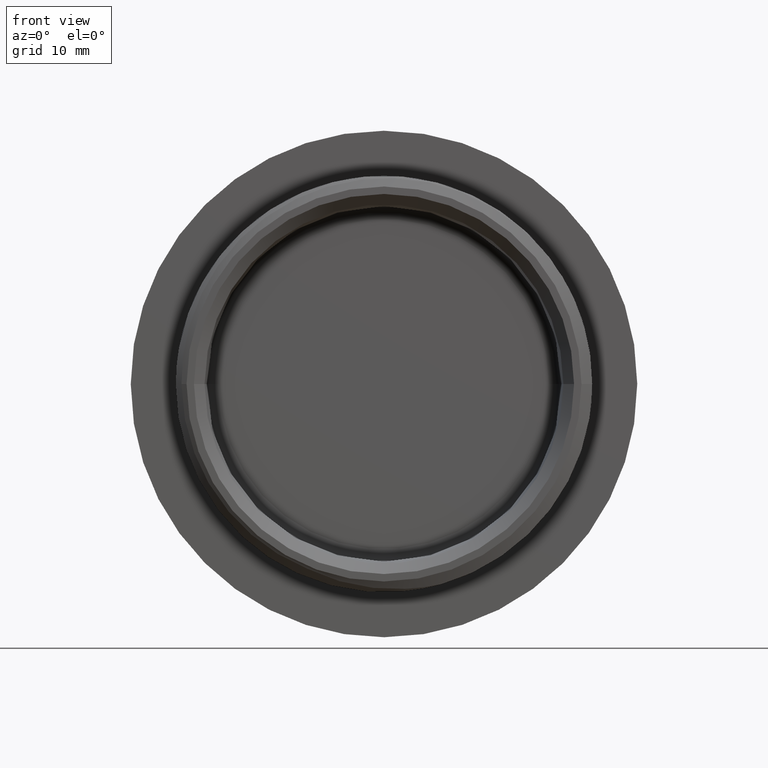
[diagram: clean part render]
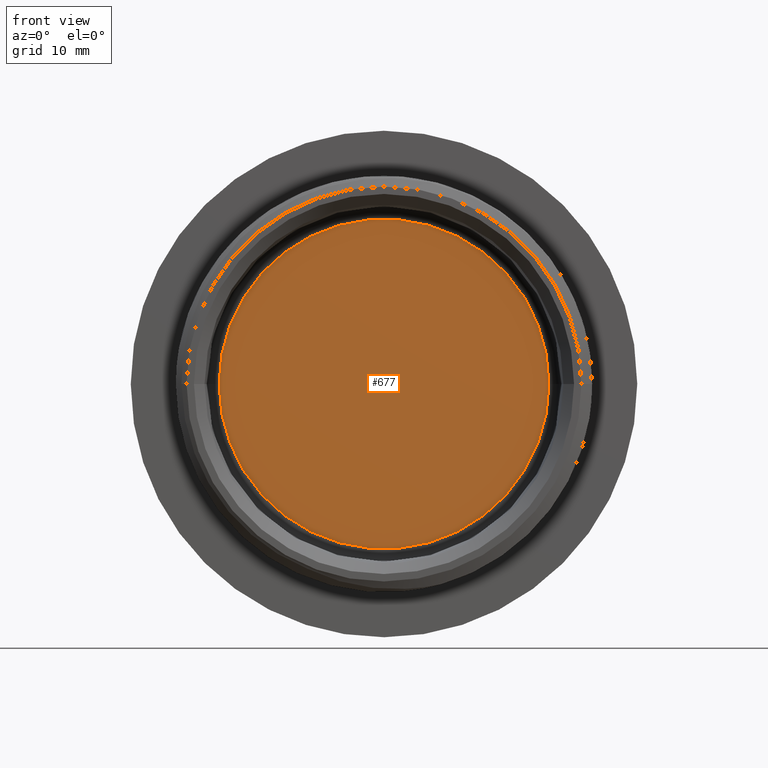
[diagram: same view with one face highlighted and labeled with its STEP entity id]
A machine part, front view. The second image highlights one B-rep face of the part: STEP entity #677.
In plain terms, the highlighted planar face has unit normal (-0, -1, 0).
Its self-contained STEP definition (entity closure, byte-faithful):
#60 = ORIENTED_EDGE ( 'NONE', *, *, #597, .T. ) ;
#82 = ORIENTED_EDGE ( 'NONE', *, *, #660, .T. ) ;
#196 = EDGE_LOOP ( 'NONE', ( #60, #82 ) ) ;
#299 = VERTEX_POINT ( 'NONE', #317 ) ;
#302 = VERTEX_POINT ( 'NONE', #363 ) ;
#317 = CARTESIAN_POINT ( 'NONE',  ( 14.45520969259880100, 9.733814154013201000, 9.463213529225447800E-016 ) ) ;
#363 = CARTESIAN_POINT ( 'NONE',  ( -14.45520969259787800, 9.733814154014575900, 2.777769019897307200E-015 ) ) ;
#544 = DIRECTION ( 'NONE',  ( -4.753635599597814600E-014, -1.000000000000000000, 0.0000000000000000000 ) ) ;
#554 = DIRECTION ( 'NONE',  ( 1.000000000000000000, -4.752269327774348900E-014, 0.0000000000000000000 ) ) ;
#555 = CARTESIAN_POINT ( 'NONE',  ( 4.621352667544349300E-013, 9.733814154013888500, 9.463213529225447800E-016 ) ) ;
#597 = EDGE_CURVE ( 'NONE', #299, #302, #777, .T. ) ;
#660 = EDGE_CURVE ( 'NONE', #302, #299, #824, .T. ) ;
#677 = ADVANCED_FACE ( 'NONE', ( #1768 ), #1702, .T. ) ;
#774 = AXIS2_PLACEMENT_3D ( 'NONE', #555, #544, #554 ) ;
#777 = CIRCLE ( 'NONE', #774, 14.45520969259834000 ) ;
#824 = CIRCLE ( 'NONE', #838, 14.45520969259834000 ) ;
#838 = AXIS2_PLACEMENT_3D ( 'NONE', #1125, #1094, #1111 ) ;
#845 = AXIS2_PLACEMENT_3D ( 'NONE', #1772, #1777, #1765 ) ;
#1094 = DIRECTION ( 'NONE',  ( -4.753635599597814600E-014, -1.000000000000000000, 0.0000000000000000000 ) ) ;
#1111 = DIRECTION ( 'NONE',  ( 1.000000000000000000, -4.752269327774348900E-014, 0.0000000000000000000 ) ) ;
#1125 = CARTESIAN_POINT ( 'NONE',  ( 4.621352667544349300E-013, 9.733814154013888500, 9.463213529225447800E-016 ) ) ;
#1702 = PLANE ( 'NONE',  #845 ) ;
#1765 = DIRECTION ( 'NONE',  ( 1.000000000000000000, -4.762017730650322400E-014, 0.0000000000000000000 ) ) ;
#1768 = FACE_OUTER_BOUND ( 'NONE', #196, .T. ) ;
#1772 = CARTESIAN_POINT ( 'NONE',  ( 4.635259558826921600E-013, 9.733814154013890300, 0.0000000000000000000 ) ) ;
#1777 = DIRECTION ( 'NONE',  ( -4.762017730650322400E-014, -1.000000000000000000, 0.0000000000000000000 ) ) ;